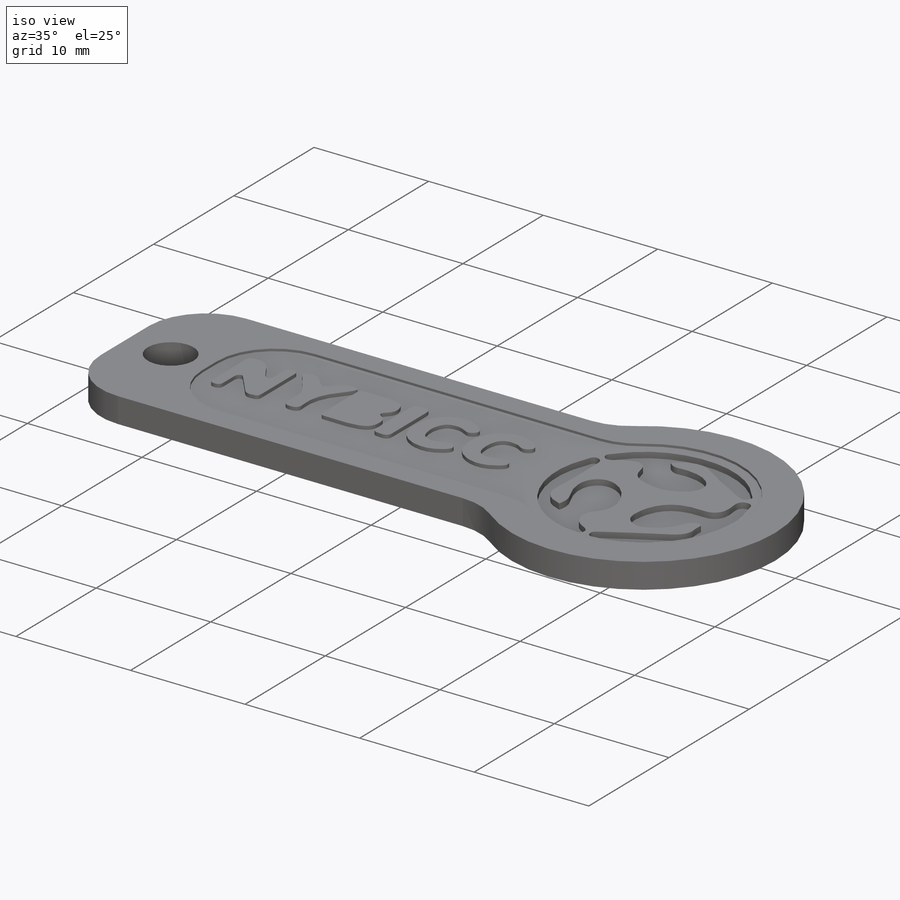
[diagram: iso view]
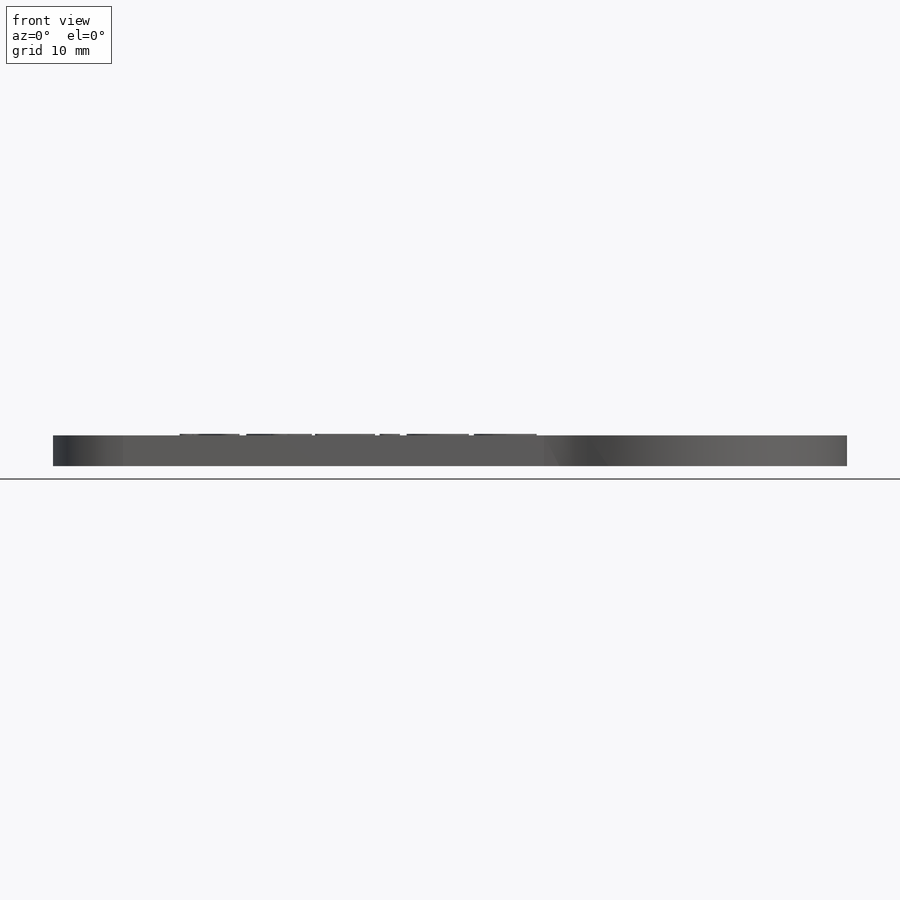
[diagram: front view]
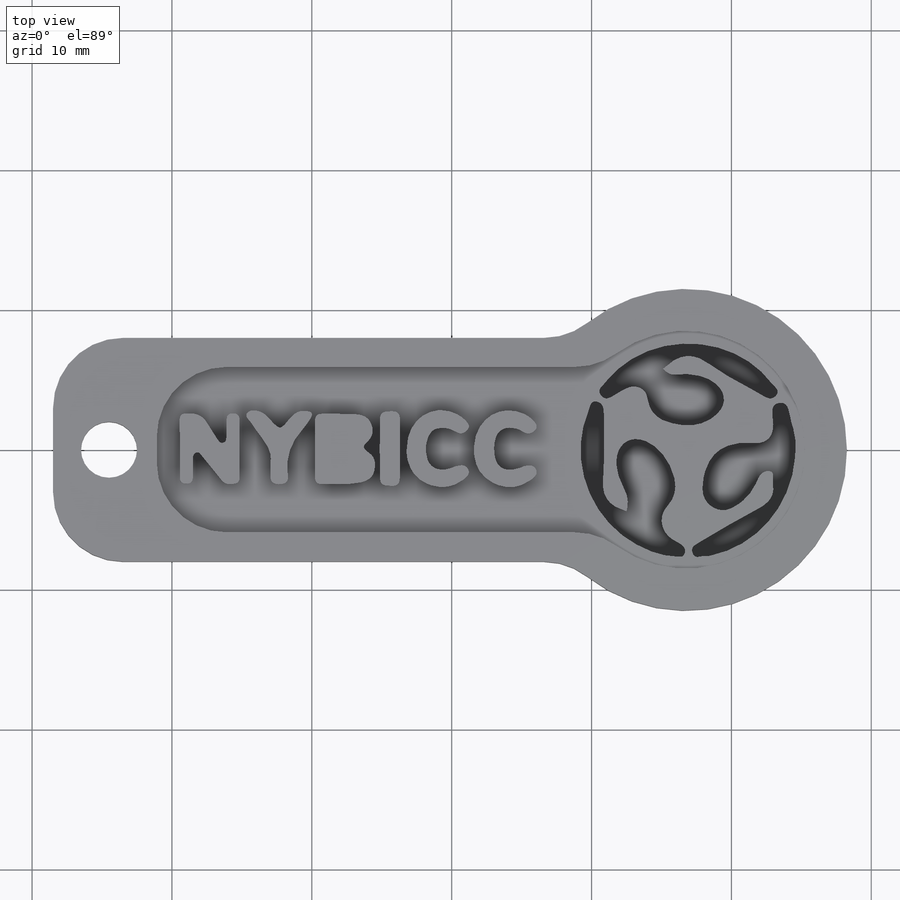
[diagram: top view]
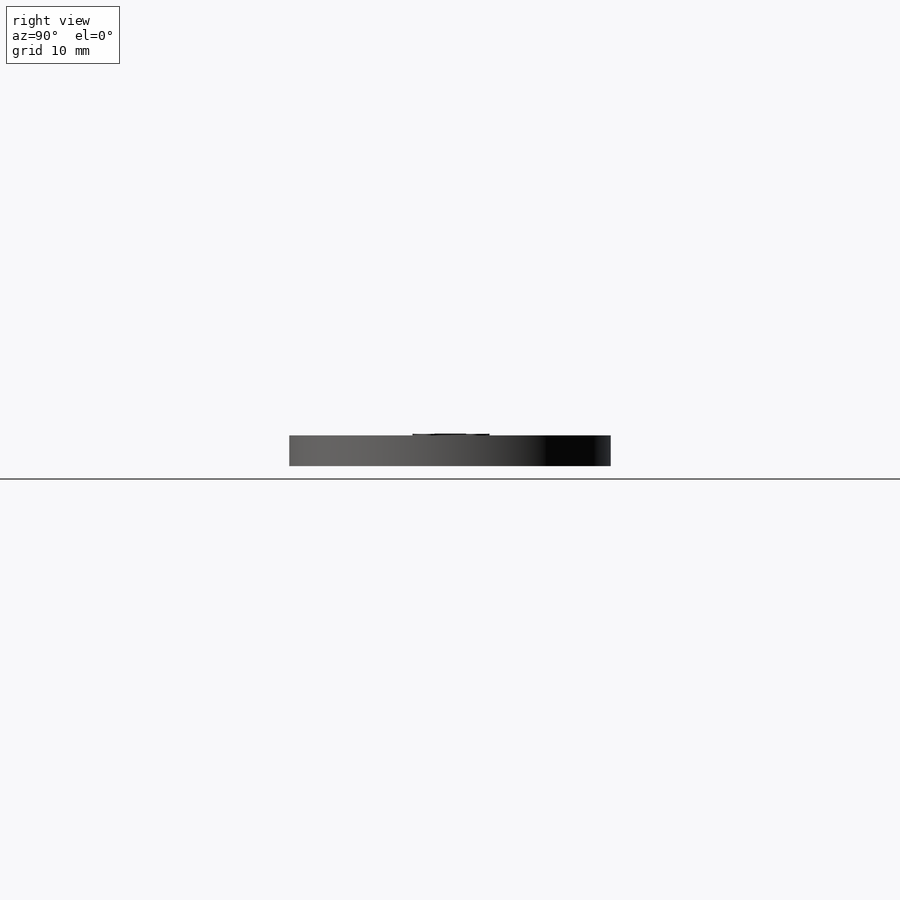
[diagram: right view]
SOLIDWORKS PART (.sldprt)
format: sldprt  version: not decoded by parser v0  size: 742,912 bytes
history: native  units: mm
features: sketch x5, plane x3, extrude x3, material x1, fillet x1, cut_extrude x1 (+9 scaffold rows collapsed)
feature tree (23):
  scaffold x9  (default folders/planes/origin — collapsed)
  material  "Matériau <non spécifié>"
  plane  "Plan de face"
  plane  "Plan de dessus"
  plane  "Plan de droite"
  sketch  "Esquisse1"  dims[D3=23.0mm D5=4.0mm D1=37.0mm D2=16.0mm D4=4.0mm]
  extrude  "Boss.-Extru.1"  Depth=2mm
  sketch  "Esquisse2"  dims[D1=3.0mm D2=0.0mm]
  sketch  "Esquisse3"
  extrude  "Boss.-Extru.2"  Depth=0.2mm
  sketch  "Esquisse4"
  sketch  "Esquisse5"
  fillet  "Congé1"  Radius=5mm
  extrude  "Boss.-Extru.3"  Depth=0.3mm
  cut_extrude  "Enlèv. mat.-Extru.1"  Depth=0.5mm
decode coverage: 7 of 10 modeling features carry decoded parameters
note: suppression state not decoded; provenance and decode notes live in map.json
